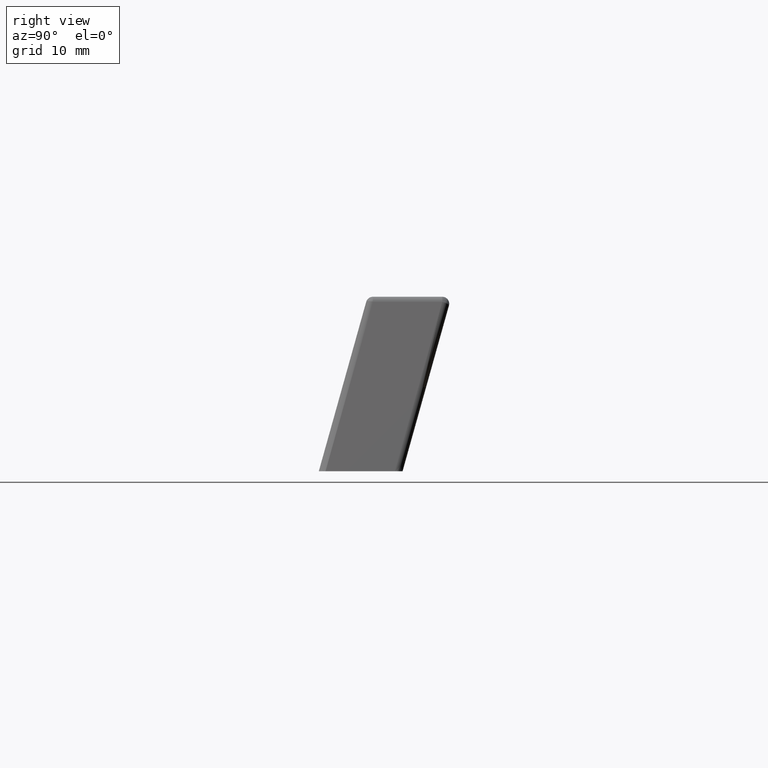
[diagram: clean part render]
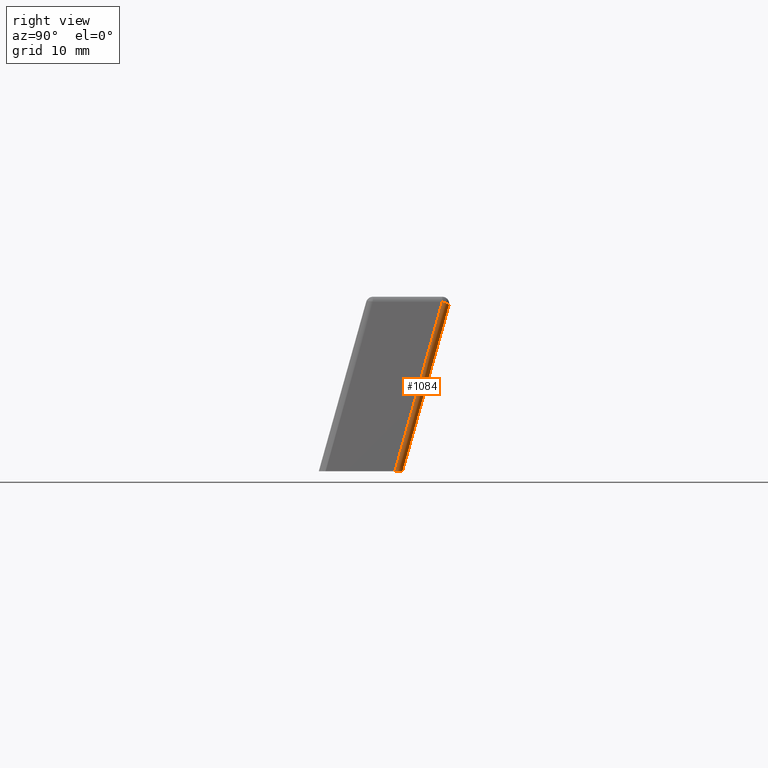
[diagram: same view with one face highlighted and labeled with its STEP entity id]
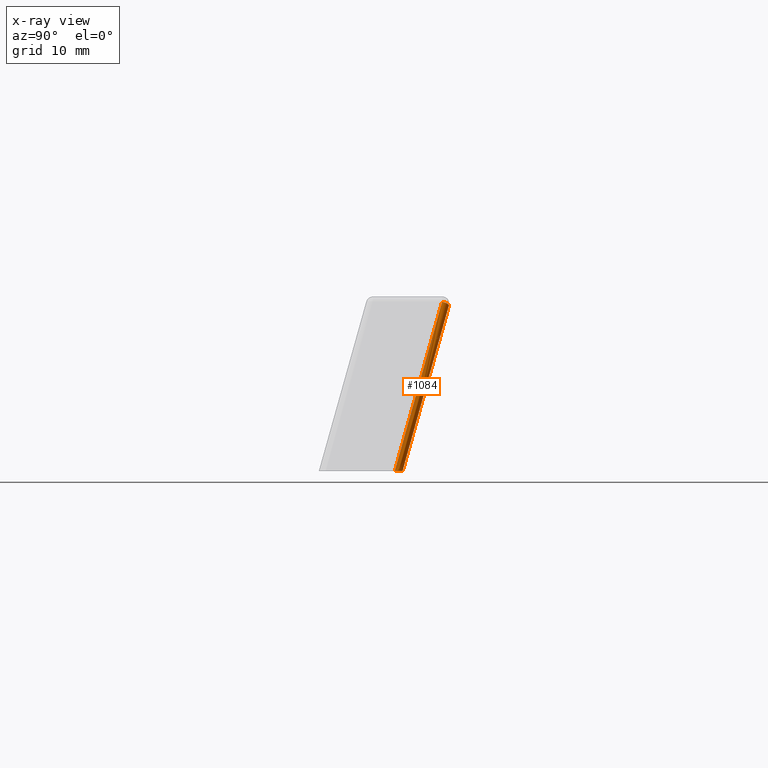
[diagram: x-ray of the same camera — body ghosted, the highlighted face saturated]
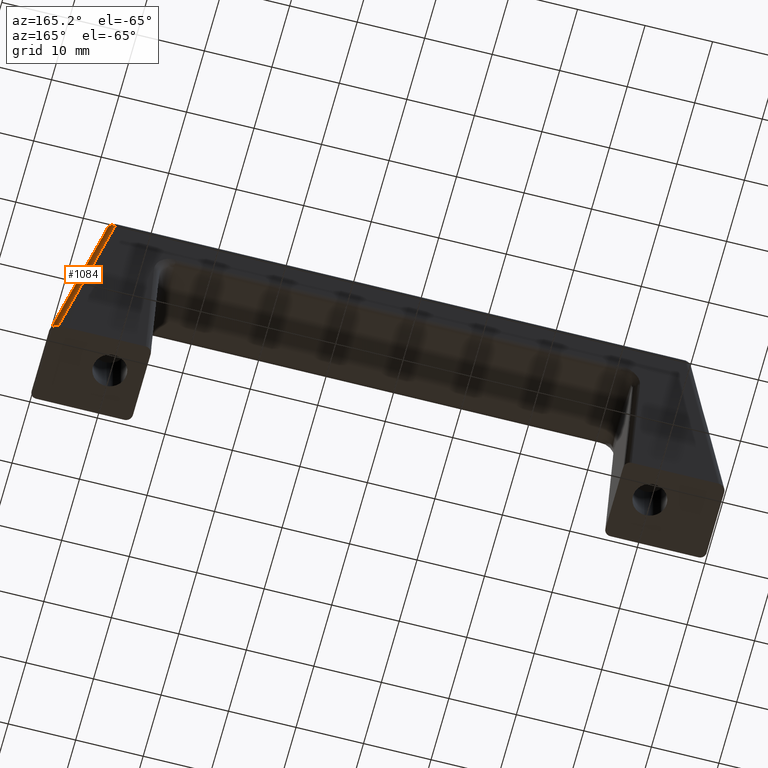
[diagram: same view with one face highlighted and labeled with its STEP entity id]
A machine part, right view. The second image highlights one B-rep face of the part: STEP entity #1084.
The next image is the same camera in x-ray: the body ghosted, the highlighted face saturated — about 0% of this face is hidden behind the body in this view.
A second angle (auxiliary view) of the same face is appended — the face is thin or edge-on in the first view.
In plain terms, the highlighted face is a freeform B-spline surface patch.
Its self-contained STEP definition (entity closure, byte-faithful):
#1020=CARTESIAN_POINT('',(49.181863382320479,11.676971697482990,-1.152470985816197));
#1021=CARTESIAN_POINT('',(42.041920425777121,18.816064603261751,24.345824416671629));
#1022=CARTESIAN_POINT('',(50.311948589915303,11.788644108236936,-0.867294895097351));
#1023=CARTESIAN_POINT('',(43.172005633371953,18.927737014015694,24.631000507390478));
#1024=CARTESIAN_POINT('',(50.164392307030887,10.660071545335651,-0.592631792162731));
#1025=CARTESIAN_POINT('',(43.024449350487536,17.799164451114400,24.905663610325099));
#1033=(BOUNDED_SURFACE()B_SPLINE_SURFACE(1,2,((#1020,#1022,#1024),(#1021,#1023,#1025)),.UNSPECIFIED.,.F.,.F.,.U.)B_SPLINE_SURFACE_WITH_KNOTS((2,2),(3,3),(0.0,27.424596649222860),(0.0,1.0),.UNSPECIFIED.)GEOMETRIC_REPRESENTATION_ITEM()RATIONAL_B_SPLINE_SURFACE(((1.0,0.649448048330184,1.0),(1.0,0.649448048330184,1.0)))REPRESENTATION_ITEM('')SURFACE());
#1034=CARTESIAN_POINT('',(48.886238549014003,12.000000000000220,0.0));
#1035=VERTEX_POINT('',#1034);
#1036=CARTESIAN_POINT('',(50.000200000000000,10.886048191297681,0.0));
#1037=VERTEX_POINT('',#1036);
#1038=CARTESIAN_POINT('',(48.886238549014003,12.000000000000220,0.0));
#1039=CARTESIAN_POINT('',(49.337489997747852,11.999999999999922,0.0));
#1040=CARTESIAN_POINT('',(49.668844998873908,11.668647867033100,0.0));
#1041=CARTESIAN_POINT('',(50.000199999999964,11.337295734066268,0.0));
#1042=CARTESIAN_POINT('',(50.000199999999950,10.886048191297631,0.0));
#1050=(BOUNDED_CURVE()B_SPLINE_CURVE(2,(#1038,#1039,#1040,#1041,#1042),.UNSPECIFIED.,.F.,.U.)B_SPLINE_CURVE_WITH_KNOTS((3,2,3),(0.0,0.500000000000000,1.0),.UNSPECIFIED.)CURVE()GEOMETRIC_REPRESENTATION_ITEM()RATIONAL_B_SPLINE_CURVE((1.0,0.916765624800740,1.0,0.916765624800740,1.0))REPRESENTATION_ITEM(''));
#1051=EDGE_CURVE('',#1035,#1037,#1050,.T.);
#1052=ORIENTED_EDGE('',*,*,#1051,.F.);
#1053=CARTESIAN_POINT('',(42.241339607118150,18.644107828933251,23.730385126517302));
#1054=VERTEX_POINT('',#1053);
#1055=CARTESIAN_POINT('',(42.241339607118150,18.644107828933251,23.730385126517302));
#1056=CARTESIAN_POINT('',(48.886238549014003,12.000000000000220,0.0));
#1057=QUASI_UNIFORM_CURVE('',1,(#1055,#1056),.UNSPECIFIED.,.F.,.U.);
#1058=EDGE_CURVE('',#1054,#1035,#1057,.T.);
#1059=ORIENTED_EDGE('',*,*,#1058,.F.);
#1060=CARTESIAN_POINT('',(43.204299505967001,17.681139594775448,24.269644642463000));
#1061=VERTEX_POINT('',#1060);
#1062=CARTESIAN_POINT('',(42.241339607118142,18.644107828933262,23.730385126517309));
#1063=CARTESIAN_POINT('',(42.662004709952683,18.674690533354202,23.839615646672204));
#1064=CARTESIAN_POINT('',(42.948443327810672,18.388249436104960,24.000021859432380));
#1065=CARTESIAN_POINT('',(43.234881945668633,18.101808338855719,24.160428072192548));
#1066=CARTESIAN_POINT('',(43.204299505966993,17.681139594775502,24.269644642463060));
#1074=(BOUNDED_CURVE()B_SPLINE_CURVE(2,(#1062,#1063,#1064,#1065,#1066),.UNSPECIFIED.,.F.,.U.)B_SPLINE_CURVE_WITH_KNOTS((3,2,3),(0.0,0.500000000000000,1.0),.UNSPECIFIED.)CURVE()GEOMETRIC_REPRESENTATION_ITEM()RATIONAL_B_SPLINE_CURVE((1.0,0.916765624800719,1.0,0.916765624800719,1.0))REPRESENTATION_ITEM(''));
#1075=EDGE_CURVE('',#1054,#1061,#1074,.T.);
#1076=ORIENTED_EDGE('',*,*,#1075,.T.);
#1077=CARTESIAN_POINT('',(50.000200000000000,10.886048191297681,0.0));
#1078=CARTESIAN_POINT('',(43.204299505967001,17.681139594775448,24.269644642463000));
#1079=QUASI_UNIFORM_CURVE('',1,(#1077,#1078),.UNSPECIFIED.,.F.,.U.);
#1080=EDGE_CURVE('',#1037,#1061,#1079,.T.);
#1081=ORIENTED_EDGE('',*,*,#1080,.F.);
#1082=EDGE_LOOP('',(#1052,#1059,#1076,#1081));
#1083=FACE_OUTER_BOUND('',#1082,.T.);
#1084=ADVANCED_FACE('',(#1083),#1033,.T.);